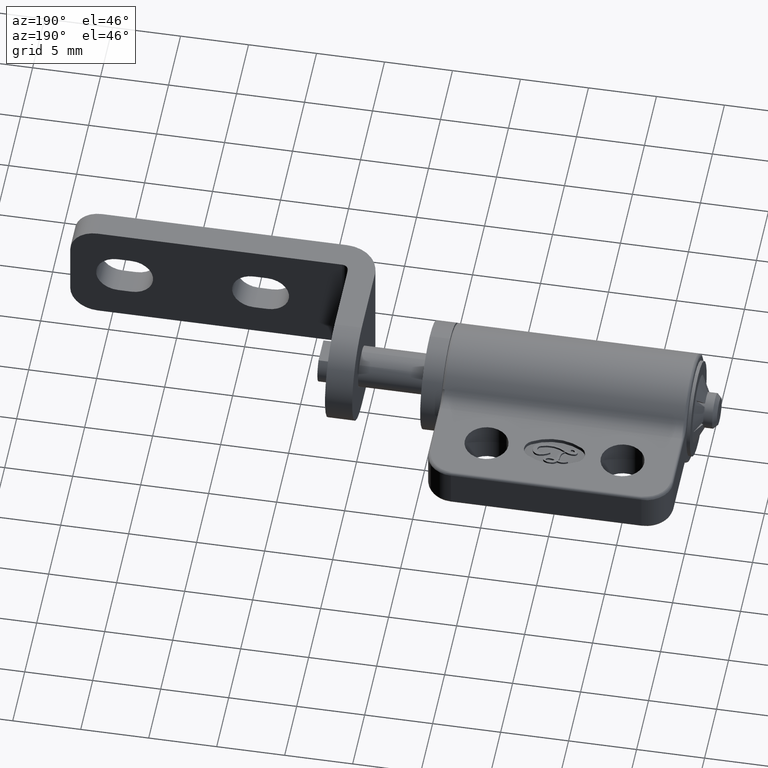
[diagram: clean part render]
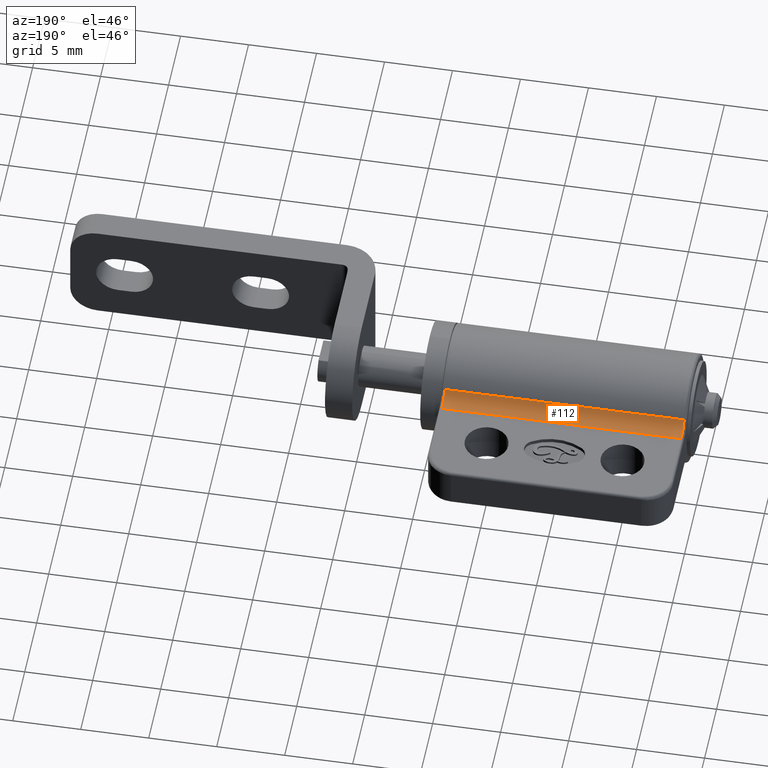
[diagram: same view with one face highlighted and labeled with its STEP entity id]
A machine part, auxiliary view. The second image highlights one B-rep face of the part: STEP entity #112.
In plain terms, the highlighted cylindrical surface (edge-blend (fillet) strip) has radius 1.5 mm, axis along (-1, -0, 0).
Its self-contained STEP definition (entity closure, byte-faithful):
#112=ADVANCED_FACE('',(#938),#937,.F.);
#937=CYLINDRICAL_SURFACE('',#2557,1.50000000000E+00);
#938=FACE_OUTER_BOUND('',#2558,.T.);
#2554=CARTESIAN_POINT('',(0.00000000000E+00,4.60977222865E+00,3.00000000000E+00));
#2555=DIRECTION('',(-1.00000000000E+00,-0.00000000000E+00,0.00000000000E+00));
#2556=DIRECTION('',(-0.00000000000E+00,1.11022302463E-16,-1.00000000000E+00));
#2557=AXIS2_PLACEMENT_3D('',#2554,#2555,#2556);
#2558=EDGE_LOOP('',(#3528,#3529,#3530,#3531));
#3528=ORIENTED_EDGE('',*,*,#4350,.F.);
#3529=ORIENTED_EDGE('',*,*,#4366,.T.);
#3530=ORIENTED_EDGE('',*,*,#4319,.F.);
#3531=ORIENTED_EDGE('',*,*,#4367,.T.);
#4319=EDGE_CURVE('',#6027,#6047,#6068,.T.);
#4350=EDGE_CURVE('',#6241,#6261,#6275,.T.);
#4366=EDGE_CURVE('',#6241,#6047,#6377,.T.);
#4367=EDGE_CURVE('',#6027,#6261,#6383,.T.);
#6027=VERTEX_POINT('',#8646);
#6047=VERTEX_POINT('',#8658);
#6068=CIRCLE('',#8676,1.50000000000E+00);
#6241=VERTEX_POINT('',#8788);
#6261=VERTEX_POINT('',#8802);
#6275=CIRCLE('',#8815,1.50000000000E+00);
#6377=LINE('',#8875,#8876);
#6383=LINE('',#8878,#8879);
#8646=CARTESIAN_POINT('',(8.80000000000E+00,4.60977222865E+00,1.50000000000E+00));
#8658=CARTESIAN_POINT('',(8.80000000000E+00,3.35256162083E+00,2.18181818182E+00));
#8673=CARTESIAN_POINT('',(8.80000000000E+00,4.60977222865E+00,3.00000000000E+00));
#8674=DIRECTION('',(-1.00000000000E+00,0.00000000000E+00,0.00000000000E+00));
#8675=DIRECTION('',(-0.00000000000E+00,-0.00000000000E+00,1.00000000000E+00));
#8676=AXIS2_PLACEMENT_3D('',#8673,#8674,#8675);
#8788=CARTESIAN_POINT('',(-8.80000000000E+00,3.35256162083E+00,2.18181818182E+00));
#8802=CARTESIAN_POINT('',(-8.80000000000E+00,4.60977222865E+00,1.50000000000E+00));
#8812=CARTESIAN_POINT('',(-8.80000000000E+00,4.60977222865E+00,3.00000000000E+00));
#8813=DIRECTION('',(1.00000000000E+00,0.00000000000E+00,0.00000000000E+00));
#8814=DIRECTION('',(-0.00000000000E+00,8.38140405208E-01,5.45454545455E-01));
#8815=AXIS2_PLACEMENT_3D('',#8812,#8813,#8814);
#8875=CARTESIAN_POINT('',(-8.80000000000E+00,3.35256162083E+00,2.18181818182E+00));
#8876=VECTOR('',#8877,1.76000000000E+01);
#8877=DIRECTION('',(1.00000000000E+00,0.00000000000E+00,0.00000000000E+00));
#8878=CARTESIAN_POINT('',(8.80000000000E+00,4.60977222865E+00,1.50000000000E+00));
#8879=VECTOR('',#8880,1.76000000000E+01);
#8880=DIRECTION('',(-1.00000000000E+00,0.00000000000E+00,0.00000000000E+00));